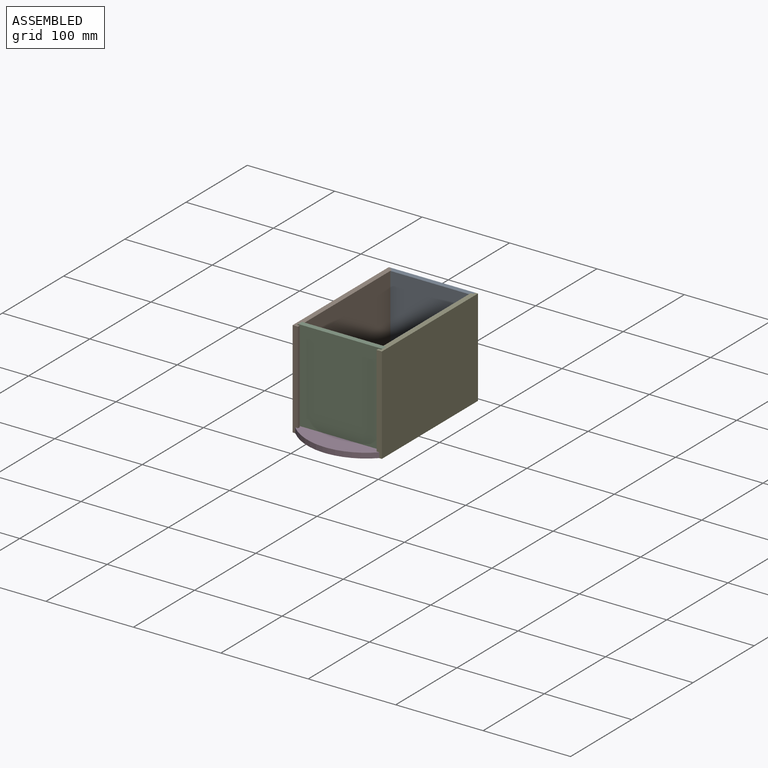
[diagram: assembled view]
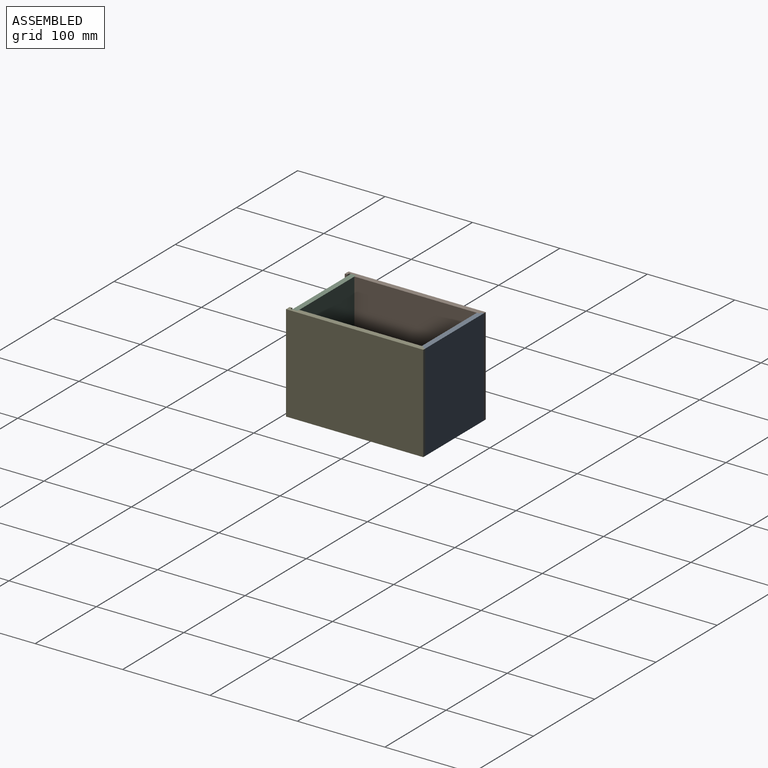
[diagram: assembled view, second angle]
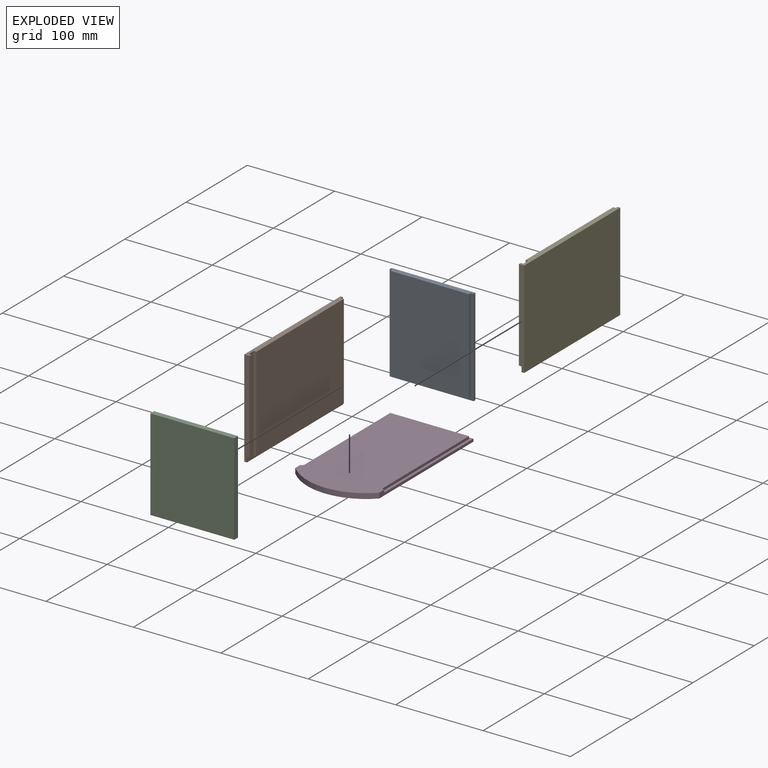
[diagram: exploded view]
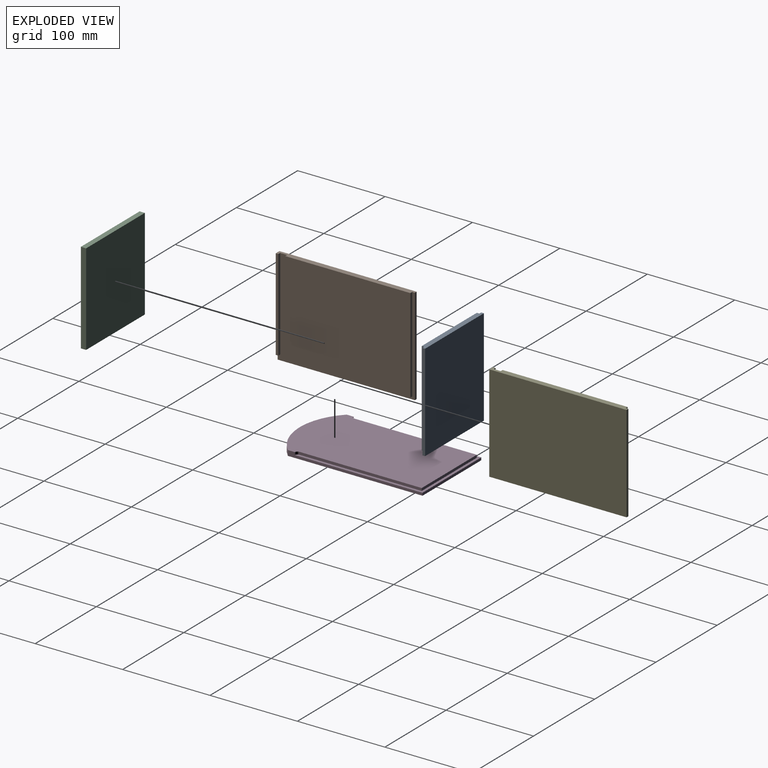
[diagram: exploded view, second angle]
ASSEMBLY  parts=5 mates=4
PART A: 10 faces, bbox 96x6x111 mm
  f0: plane 111x96mm, normal (0,-1,0), area 936mm2, adj f1,f3,f4,f6,f7,f8,f9
  f1: plane 108x3mm, normal (-1,0,0), area 324mm2, adj f0,f2,f7,f9
  f2: plane 108x90mm, normal (0,-1,0), area 9720mm2, adj f1,f3,f7,f9
  f3: plane 108x3mm, normal (1,0,0), area 324mm2, adj f0,f2,f7,f9
  f4: plane 111x3mm, normal (1,0,0), area 333mm2, adj f0,f5,f7,f8
  f5: plane 111x96mm, normal (0,1,0), area 10656mm2, adj f4,f6,f7,f8
  f6: plane 111x3mm, normal (-1,0,0), area 333mm2, adj f0,f5,f7,f8
  f7: plane 96x6mm, normal (0,0,1), area 558mm2, adj f0,f1,f2,f3,f4,f5,f6
  f8: plane 96x3mm, normal (0,0,-1), area 288mm2, adj f0,f4,f5,f6
  f9: plane 90x3mm, normal (0,0,-1), area 270mm2, adj f0,f1,f2,f3
PART B: 13 faces, bbox 6x157x111 mm
  f0: plane 111x6mm, normal (0,-1,0), area 648mm2, adj f1,f2,f6,f8,f10,f12
  f1: plane 105x3mm, normal (1,0,0), area 315mm2, adj f0,f9,f10,f12
  f2: plane 157x3mm, normal (0,0,-1), area 471mm2, adj f0,f6,f7,f8
  f3: plane 108x3mm, normal (0,-1,0), area 324mm2, adj f4,f6,f10,f11
  f4: plane 143x108mm, normal (1,0,0), area 15444mm2, adj f3,f5,f10,f11
  f5: plane 108x3mm, normal (0,1,0), area 324mm2, adj f4,f6,f10,f11
  f6: plane 157x111mm, normal (1,0,0), area 1668mm2, adj f0,f2,f3,f5,f7,f9,f10,f11
  f7: plane 111x3mm, normal (0,1,0), area 333mm2, adj f2,f6,f8,f10
  f8: plane 157x111mm, normal (-1,0,0), area 17427mm2, adj f0,f2,f7,f10
  f9: plane 105x3mm, normal (0,1,0), area 315mm2, adj f1,f6,f10,f12
  f10: plane 157x6mm, normal (0,0,1), area 909mm2, adj f0,f1,f3,f4,f5,f6,f7,f8
  f11: plane 143x3mm, normal (0,0,-1), area 429mm2, adj f3,f4,f5,f6
  f12: plane 3x3mm, normal (0,0,-1), area 9mm2, adj f0,f1,f6,f9
PART C: 6 faces, bbox 96x6x105 mm
  f0: plane 96x6mm, normal (0,0,1), area 576mm2, adj f1,f3,f4,f5
  f1: plane 105x6mm, normal (-1,0,0), area 630mm2, adj f0,f2,f3,f4
  f2: plane 96x6mm, normal (0,0,-1), area 576mm2, adj f1,f3,f4,f5
  f3: plane 105x96mm, normal (0,-1,0), area 10080mm2, adj f0,f1,f2,f5
  f4: plane 105x96mm, normal (0,1,0), area 10080mm2, adj f0,f1,f2,f5
  f5: plane 105x6mm, normal (1,0,0), area 630mm2, adj f0,f2,f3,f4
PART D: 14 faces, bbox 96x174x6 mm
  f0: plane 140x3mm, normal (-1,0,0), area 420mm2, adj f1,f9,f10,f13
  f1: cylinder r=3mm len=3mm, axis (0,0,-1), area 14.1mm2, adj f0,f2,f10,f13
  f2: plane 154x6mm, normal (-1,0,0), area 486mm2, adj f1,f3,f10,f11,f12,f13
  f3: cylinder r=67.5mm len=45.61mm, axis (0,0,-1), area 306.1mm2, adj f2,f4,f10,f11
  f4: plane 6x4.78mm, normal (0,-1,0), area 28.7mm2, adj f3,f5,f10,f11
  f5: cylinder r=67.5mm len=45.61mm, axis (0,0,-1), area 306.1mm2, adj f4,f6,f10,f11
  f6: plane 154x6mm, normal (1,0,0), area 486mm2, adj f5,f7,f10,f11,f12,f13
  f7: cylinder r=3mm len=3mm, axis (0,0,-1), area 14.1mm2, adj f6,f8,f10,f13
  f8: plane 140x3mm, normal (1,0,0), area 420mm2, adj f7,f9,f10,f13
  f9: plane 90x3mm, normal (0,1,0), area 270mm2, adj f0,f8,f10,f13
  f10: plane 171x96mm, normal (0,0,1), area 14968.1mm2, adj f0,f1,f2,f3,f4,f5,f6,f7
  f11: plane 174x96mm, normal (0,0,-1), area 16110.2mm2, adj f2,f3,f4,f5,f6,f12
  f12: plane 96x3mm, normal (0,1,0), area 288mm2, adj f2,f6,f11,f13
  f13: plane 146x96mm, normal (0,0,1), area 1142.1mm2, adj f0,f1,f2,f6,f7,f8,f9,f12
PART E: 13 faces, bbox 6x157x111 mm
  f0: plane 111x6mm, normal (0,-1,0), area 648mm2, adj f2,f3,f6,f7,f10,f12
  f1: plane 105x3mm, normal (0,1,0), area 315mm2, adj f2,f6,f10,f12
  f2: plane 105x3mm, normal (-1,0,0), area 315mm2, adj f0,f1,f10,f12
  f3: plane 157x3mm, normal (0,0,-1), area 471mm2, adj f0,f6,f7,f8
  f4: plane 143x108mm, normal (-1,0,0), area 15444mm2, adj f5,f9,f10,f11
  f5: plane 108x3mm, normal (0,-1,0), area 324mm2, adj f4,f6,f10,f11
  f6: plane 157x111mm, normal (-1,0,0), area 1668mm2, adj f0,f1,f3,f5,f8,f9,f10,f11
  f7: plane 157x111mm, normal (1,0,0), area 17427mm2, adj f0,f3,f8,f10
  f8: plane 111x3mm, normal (0,1,0), area 333mm2, adj f3,f6,f7,f10
  f9: plane 108x3mm, normal (0,1,0), area 324mm2, adj f4,f6,f10,f11
  f10: plane 157x6mm, normal (0,0,1), area 909mm2, adj f0,f1,f2,f4,f5,f6,f7,f8
  f11: plane 143x3mm, normal (0,0,-1), area 429mm2, adj f4,f5,f6,f9
  f12: plane 3x3mm, normal (0,0,-1), area 9mm2, adj f0,f1,f2,f6
PLACE A t=(-71.08,120.45,-4.44)mm
PLACE B t=(-71.08,120.45,-4.44)mm
PLACE C t=(-71.08,120.45,-4.44)mm
PLACE D t=(-71.08,120.45,-4.44)mm
PLACE E t=(-71.08,120.45,-4.44)mm
MATE fastened C.f4 <-> E.f5  axis (0,1,0) through (-70.59,-29.42,106.56)mm
MATE fastened A.f0 <-> E.f9  axis (0,-1,0) through (-70.59,113.58,106.56)mm
MATE fastened D.f13 <-> B.f11  axis (0,0,1) through (-166.59,113.58,-1.44)mm
MATE fastened C.f4 <-> B.f3  axis (0,1,0) through (-166.59,-29.42,106.56)mm
